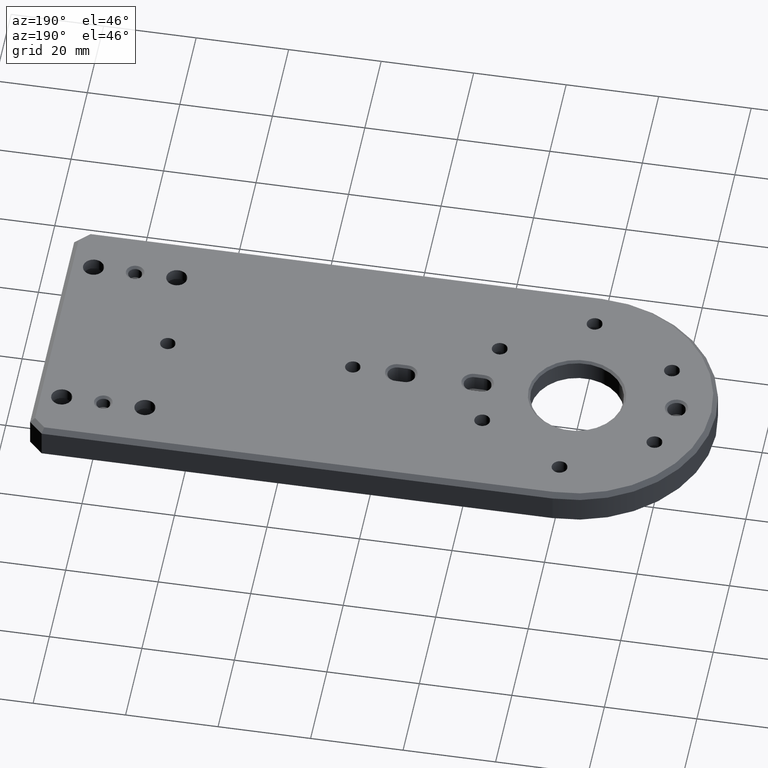
[diagram: clean part render]
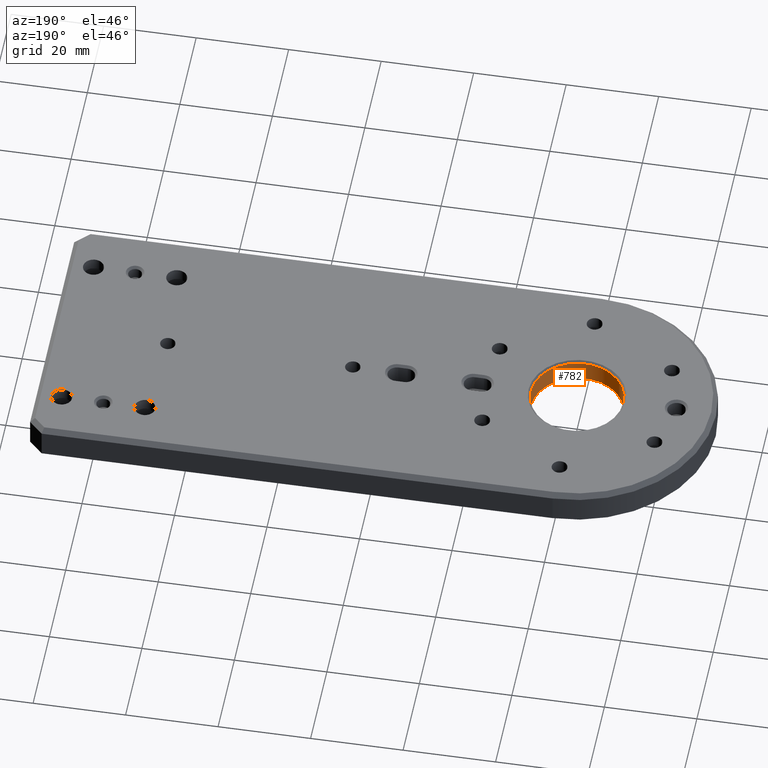
[diagram: same view with one face highlighted and labeled with its STEP entity id]
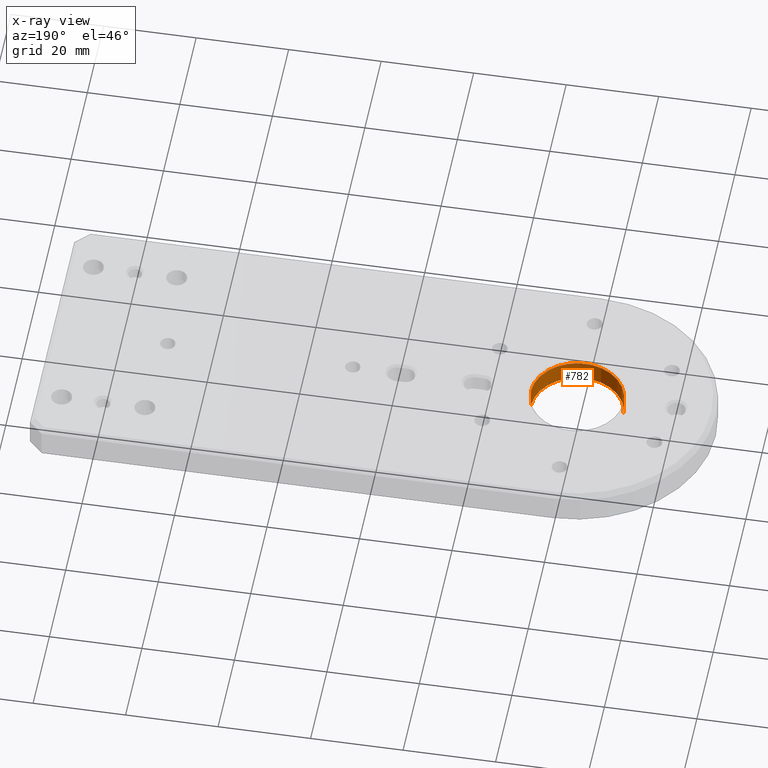
[diagram: x-ray of the same camera — body ghosted, the highlighted face saturated]
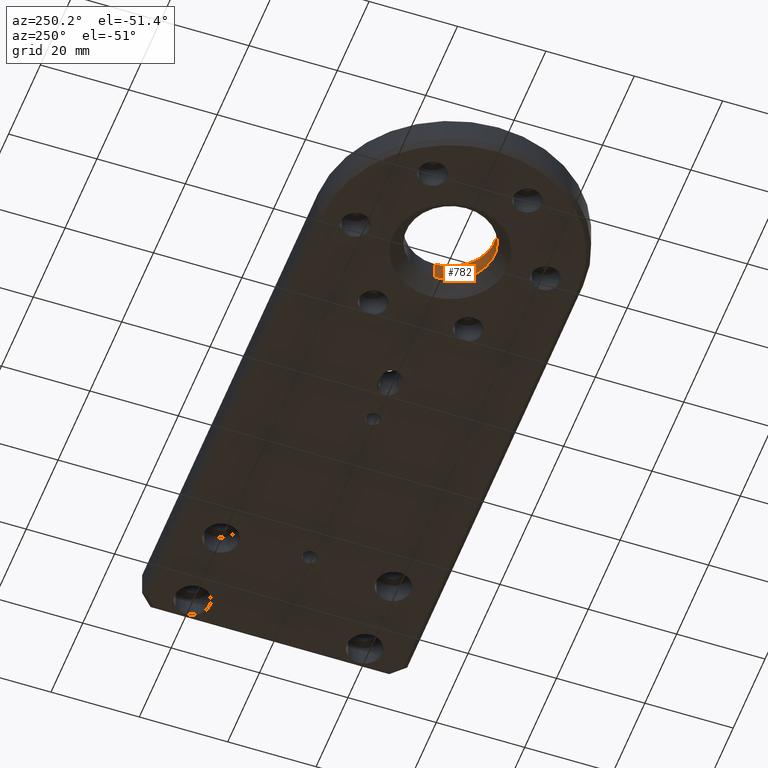
[diagram: same view with one face highlighted and labeled with its STEP entity id]
A machine part, auxiliary view. The second image highlights one B-rep face of the part: STEP entity #782.
The next image is the same camera in x-ray: the body ghosted, the highlighted face saturated — about 0% of this face is hidden behind the body in this view.
A second angle (auxiliary view) of the same face is appended — the face is thin or edge-on in the first view.
In plain terms, the highlighted cylindrical surface (partial cylindrical patch) has radius 10 mm, axis along (-0, -0, 1).
Its self-contained STEP definition (entity closure, byte-faithful):
#87 = AXIS2_PLACEMENT_3D ( 'NONE', #120, #1237, #2864 ) ;
#120 = CARTESIAN_POINT ( 'NONE',  ( 0.0000000000000000000, 0.0000000000000000000, -8.000000000000000000 ) ) ;
#146 = DIRECTION ( 'NONE',  ( -0.0000000000000000000, -0.0000000000000000000, -1.000000000000000000 ) ) ;
#229 = CARTESIAN_POINT ( 'NONE',  ( 10.00000000000000000, 0.0000000000000000000, -4.999999999999982236 ) ) ;
#345 = CIRCLE ( 'NONE', #2409, 10.00000000000000000 ) ;
#422 = CARTESIAN_POINT ( 'NONE',  ( -10.00000000000000000, 1.224646799147353256E-15, -4.999999999999982236 ) ) ;
#457 = DIRECTION ( 'NONE',  ( -0.0000000000000000000, -0.0000000000000000000, 1.000000000000000000 ) ) ;
#476 = ORIENTED_EDGE ( 'NONE', *, *, #1283, .T. ) ;
#498 = DIRECTION ( 'NONE',  ( 0.0000000000000000000, 0.0000000000000000000, 1.000000000000000000 ) ) ;
#540 = EDGE_CURVE ( 'NONE', #1954, #1261, #1223, .T. ) ;
#782 = ADVANCED_FACE ( 'NONE', ( #2630 ), #3219, .F. ) ;
#826 = EDGE_CURVE ( 'NONE', #1365, #3112, #1757, .T. ) ;
#889 = EDGE_LOOP ( 'NONE', ( #476, #2204, #1147, #2025 ) ) ;
#1147 = ORIENTED_EDGE ( 'NONE', *, *, #2482, .T. ) ;
#1210 = CIRCLE ( 'NONE', #2742, 10.00000000000000000 ) ;
#1223 = LINE ( 'NONE', #3447, #3241 ) ;
#1237 = DIRECTION ( 'NONE',  ( -0.0000000000000000000, -0.0000000000000000000, 1.000000000000000000 ) ) ;
#1261 = VERTEX_POINT ( 'NONE', #2621 ) ;
#1283 = EDGE_CURVE ( 'NONE', #1954, #1365, #345, .T. ) ;
#1365 = VERTEX_POINT ( 'NONE', #422 ) ;
#1431 = CARTESIAN_POINT ( 'NONE',  ( -10.00000000000000000, 1.224646799147353256E-15, -8.000000000000000000 ) ) ;
#1757 = LINE ( 'NONE', #1431, #2212 ) ;
#1954 = VERTEX_POINT ( 'NONE', #229 ) ;
#2025 = ORIENTED_EDGE ( 'NONE', *, *, #540, .F. ) ;
#2029 = CARTESIAN_POINT ( 'NONE',  ( 0.0000000000000000000, 0.0000000000000000000, -0.5000000000000022204 ) ) ;
#2091 = CARTESIAN_POINT ( 'NONE',  ( 0.0000000000000000000, 0.0000000000000000000, -4.999999999999982236 ) ) ;
#2204 = ORIENTED_EDGE ( 'NONE', *, *, #826, .T. ) ;
#2212 = VECTOR ( 'NONE', #2555, 1000.000000000000000 ) ;
#2409 = AXIS2_PLACEMENT_3D ( 'NONE', #2091, #146, #2914 ) ;
#2463 = DIRECTION ( 'NONE',  ( 1.000000000000000000, 0.0000000000000000000, 0.0000000000000000000 ) ) ;
#2482 = EDGE_CURVE ( 'NONE', #3112, #1261, #1210, .T. ) ;
#2555 = DIRECTION ( 'NONE',  ( -0.0000000000000000000, -0.0000000000000000000, 1.000000000000000000 ) ) ;
#2621 = CARTESIAN_POINT ( 'NONE',  ( 10.00000000000000000, 0.0000000000000000000, -0.5000000000000022204 ) ) ;
#2630 = FACE_OUTER_BOUND ( 'NONE', #889, .T. ) ;
#2742 = AXIS2_PLACEMENT_3D ( 'NONE', #2029, #498, #2463 ) ;
#2864 = DIRECTION ( 'NONE',  ( 1.000000000000000000, 0.0000000000000000000, 0.0000000000000000000 ) ) ;
#2914 = DIRECTION ( 'NONE',  ( 1.000000000000000000, 0.0000000000000000000, 0.0000000000000000000 ) ) ;
#3112 = VERTEX_POINT ( 'NONE', #3612 ) ;
#3219 = CYLINDRICAL_SURFACE ( 'NONE', #87, 10.00000000000000000 ) ;
#3241 = VECTOR ( 'NONE', #457, 1000.000000000000000 ) ;
#3447 = CARTESIAN_POINT ( 'NONE',  ( 10.00000000000000000, 0.0000000000000000000, -8.000000000000000000 ) ) ;
#3612 = CARTESIAN_POINT ( 'NONE',  ( -10.00000000000000000, 1.224646799147353256E-15, -0.5000000000000022204 ) ) ;